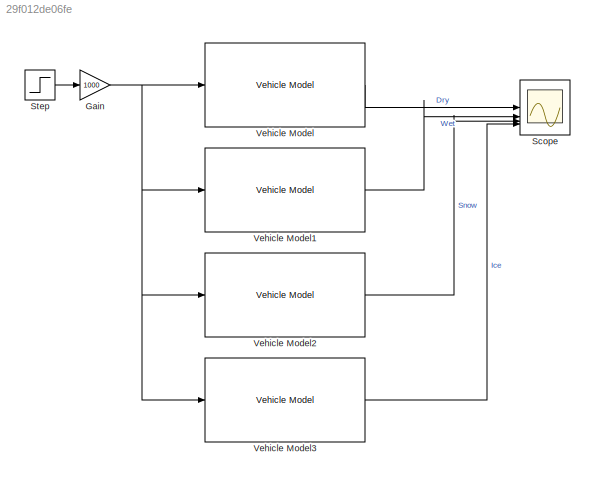
MODEL slx_29f012de06fe
KIND model
CONFIG AbsTol = auto
CONFIG EnableMultiTasking = off
CONFIG FixedStep = auto
CONFIG MaxStep = auto
CONFIG MinStep = auto
CONFIG RelTol = 1e-3
CONFIG SampleTimeConstraint = Unconstrained
CONFIG SolverName = VariableStepAuto
CONFIG StartTime = 0.0
CONFIG StopTime = 100.0
BLOCK [Gain] Gain
  Gain = 1000
BLOCK [Scope] Scope
  Floating = off
  NumInputPorts = 4
  ScopeSpecificationString = Simulink.scopes.TimeScopeBlockCfg('CurrentConfiguration', extmgr.ConfigurationSet(extmgr.Configuration('Core','General UI',true),extmgr.Configuration('Core','Source UI',true),extmgr.Configuration('Sources','WiredSimulink',true),extmgr.Configuration('Visuals','Time Domain',true,'SerializedDisplays',{struct('MinYLimReal','-0.13282','MaxYLimReal','1.19541','YLabelReal','','MinYLimMag','0.00000','MaxY...<+1429ch>
BLOCK [Step] Step
  SampleTime = 0
BLOCK [Reference] Vehicle Model  REF=MultiModelToolbox/Vehicle Model
  SourceBlock = MultiModelToolbox/Vehicle Model
  SourceType = SubSystem
BLOCK [Reference] Vehicle Model1  REF=MultiModelToolbox/Vehicle Model
  SourceBlock = MultiModelToolbox/Vehicle Model
  SourceType = SubSystem
BLOCK [Reference] Vehicle Model2  REF=MultiModelToolbox/Vehicle Model
  SourceBlock = MultiModelToolbox/Vehicle Model
  SourceType = SubSystem
BLOCK [Reference] Vehicle Model3  REF=MultiModelToolbox/Vehicle Model
  SourceBlock = MultiModelToolbox/Vehicle Model
  SourceType = SubSystem
NET Gain:1 -> Vehicle Model1:1, Vehicle Model2:1, Vehicle Model3:1, Vehicle Model:1
LINE Step:1 -> Gain:1
LINE Vehicle Model1:1 -> Scope:2
LINE Vehicle Model2:1 -> Scope:3
LINE Vehicle Model3:1 -> Scope:4
LINE Vehicle Model:1 -> Scope:1
note: NET lines group one-source signal fan-out (src -> all destinations, sorted); 1:1 wires keep LINE
